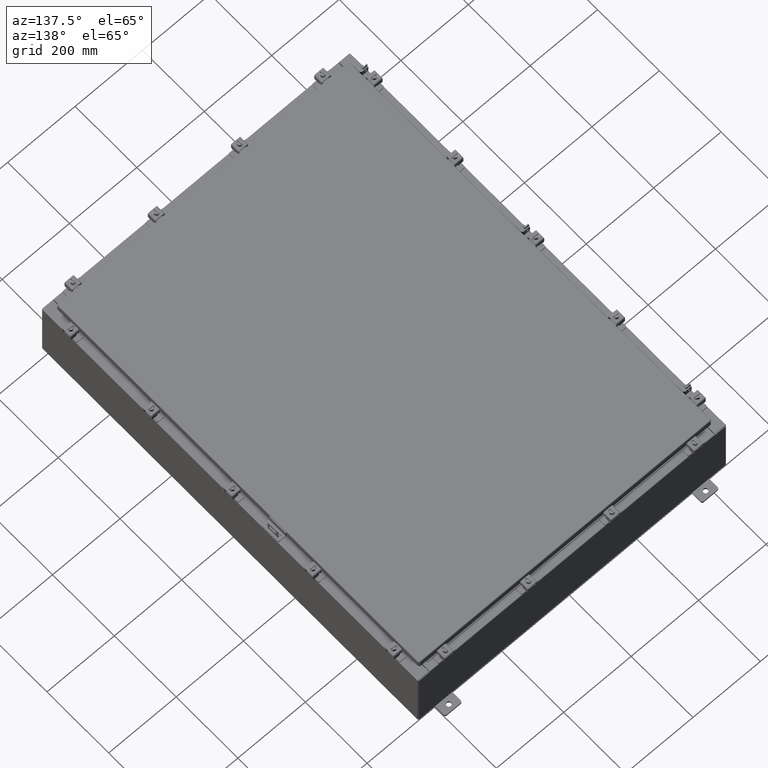
[diagram: clean part render]
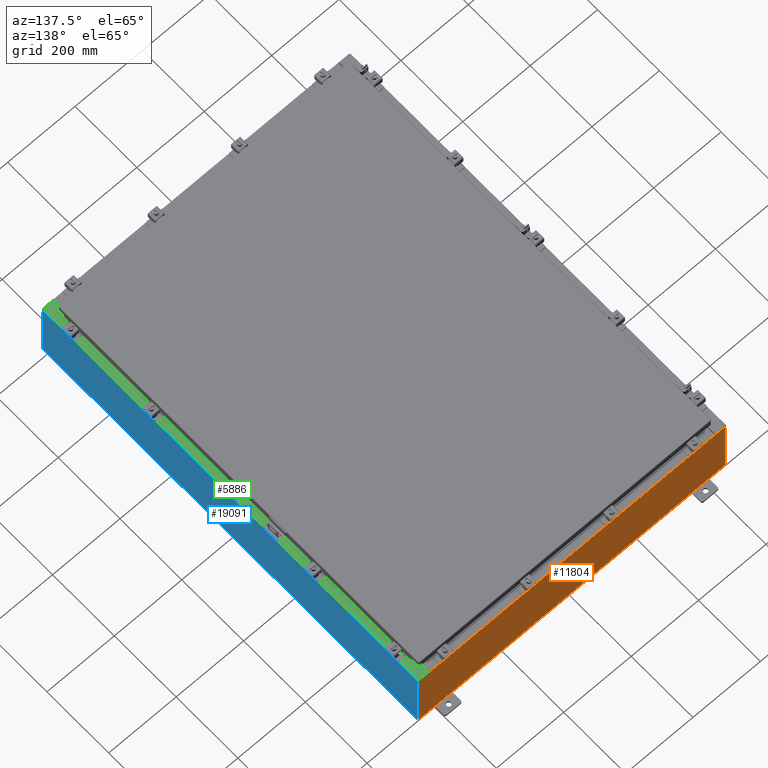
[diagram: same view with three faces highlighted in distinct colors, each labeled with its STEP entity id]
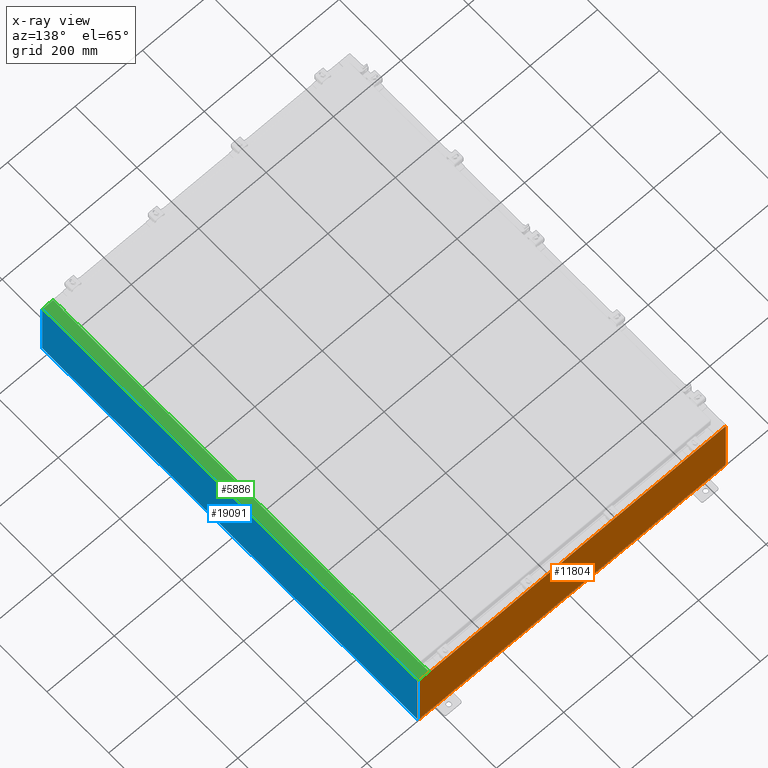
[diagram: x-ray of the same camera — body ghosted, the three highlighted faces saturated]
A machine part, auxiliary view with three faces highlighted in distinct colors.
The next image is the same camera in x-ray (body ghosted, the three faces saturated) — at least one of them is partly hidden behind the body in this view.
Their STEP definitions:

[orange] entity #11804 — the highlighted planar face has unit normal (0, -1, 0).
#4 = VERTEX_POINT ( 'NONE', #8523 ) ;
#55 = DIRECTION ( 'NONE',  ( -0.0000000000000000000, 1.000000000000000000, -0.0000000000000000000 ) ) ;
#315 = EDGE_CURVE ( 'NONE', #4, #26174, #423, .T. ) ;
#423 = LINE ( 'NONE', #16085, #4690 ) ;
#1369 = VECTOR ( 'NONE', #5095, 39.37007874015748100 ) ;
#1434 = DIRECTION ( 'NONE',  ( 1.000000000000000000, 0.0000000000000000000, 0.0000000000000000000 ) ) ;
#1683 = VECTOR ( 'NONE', #26935, 39.37007874015748100 ) ;
#2346 = DIRECTION ( 'NONE',  ( 0.0000000000000000000, -1.000000000000000000, 0.0000000000000000000 ) ) ;
#2915 = CARTESIAN_POINT ( 'NONE',  ( -16.67454999999999600, 0.0000000000000000000, 3.925300000000000500 ) ) ;
#2988 = CARTESIAN_POINT ( 'NONE',  ( -16.67454999999999600, -0.0000000000000000000, 0.0000000000000000000 ) ) ;
#4337 = LINE ( 'NONE', #17702, #14171 ) ;
#4454 = CARTESIAN_POINT ( 'NONE',  ( -17.92529999999999600, 0.0000000000000000000, 3.925300000000000500 ) ) ;
#4690 = VECTOR ( 'NONE', #22344, 39.37007874015748100 ) ;
#5095 = DIRECTION ( 'NONE',  ( 0.0000000000000000000, 0.0000000000000000000, 1.000000000000000000 ) ) ;
#5131 = EDGE_CURVE ( 'NONE', #20375, #4, #25105, .T. ) ;
#5227 = CARTESIAN_POINT ( 'NONE',  ( 17.92530000000000400, 0.0000000000000000000, 3.925300000000000500 ) ) ;
#5436 = VERTEX_POINT ( 'NONE', #2915 ) ;
#6010 = EDGE_CURVE ( 'NONE', #14990, #25092, #17833, .T. ) ;
#6090 = VERTEX_POINT ( 'NONE', #9784 ) ;
#6280 = VECTOR ( 'NONE', #13501, 39.37007874015748100 ) ;
#6282 = VERTEX_POINT ( 'NONE', #21019 ) ;
#6477 = CARTESIAN_POINT ( 'NONE',  ( 0.0000000000000000000, 0.0000000000000000000, 0.0000000000000000000 ) ) ;
#6932 = LINE ( 'NONE', #26167, #6280 ) ;
#7173 = DIRECTION ( 'NONE',  ( -0.0000000000000000000, -0.0000000000000000000, 1.000000000000000000 ) ) ;
#7474 = CARTESIAN_POINT ( 'NONE',  ( 16.63720000000000700, 0.0000000000000000000, 3.912300000000000100 ) ) ;
#7970 = DIRECTION ( 'NONE',  ( -8.681145560800009800E-014, 0.0000000000000000000, -1.000000000000000000 ) ) ;
#8123 = CARTESIAN_POINT ( 'NONE',  ( -16.63719999999999600, -0.0000000000000000000, 0.0000000000000000000 ) ) ;
#8308 = CARTESIAN_POINT ( 'NONE',  ( -16.63719999999999600, 3.756290991288361700E-016, 3.912300000000000100 ) ) ;
#8523 = CARTESIAN_POINT ( 'NONE',  ( 16.63720000000000700, 0.0000000000000000000, 3.874950000000000100 ) ) ;
#8681 = DIRECTION ( 'NONE',  ( -1.000000000000000000, -0.0000000000000000000, -0.0000000000000000000 ) ) ;
#9333 = LINE ( 'NONE', #20891, #14269 ) ;
#9784 = CARTESIAN_POINT ( 'NONE',  ( -16.67454999999999600, 0.0000000000000000000, 3.874950000000000100 ) ) ;
#9839 = AXIS2_PLACEMENT_3D ( 'NONE', #6477, #2346, #17063 ) ;
#9908 = ORIENTED_EDGE ( 'NONE', *, *, #26637, .F. ) ;
#10637 = ORIENTED_EDGE ( 'NONE', *, *, #26653, .T. ) ;
#10647 = VECTOR ( 'NONE', #1434, 39.37007874015748100 ) ;
#10686 = PLANE ( 'NONE',  #9839 ) ;
#11107 = EDGE_CURVE ( 'NONE', #6282, #14990, #24042, .T. ) ;
#11294 = EDGE_CURVE ( 'NONE', #19637, #6090, #26357, .T. ) ;
#11804 = ADVANCED_FACE ( 'NONE', ( #16463 ), #10686, .F. ) ;
#11867 = VECTOR ( 'NONE', #8681, 39.37007874015748100 ) ;
#12198 = VECTOR ( 'NONE', #13737, 39.37007874015748100 ) ;
#12514 = CARTESIAN_POINT ( 'NONE',  ( 16.65587500000000500, 0.0000000000000000000, 3.874950000000000100 ) ) ;
#12560 = ORIENTED_EDGE ( 'NONE', *, *, #16410, .T. ) ;
#12592 = CARTESIAN_POINT ( 'NONE',  ( 17.92530000000000400, 0.0000000000000000000, 3.925300000000000500 ) ) ;
#12645 = CARTESIAN_POINT ( 'NONE',  ( -16.65587499999999800, 0.0000000000000000000, 3.874950000000000100 ) ) ;
#12748 = CARTESIAN_POINT ( 'NONE',  ( 17.92530000000000400, 0.0000000000000000000, -3.925299999999999100 ) ) ;
#13169 = CARTESIAN_POINT ( 'NONE',  ( -16.63719999999999600, -0.0000000000000000000, 3.874950000000000100 ) ) ;
#13501 = DIRECTION ( 'NONE',  ( 1.000000000000000000, 0.0000000000000000000, 0.0000000000000000000 ) ) ;
#13519 = VECTOR ( 'NONE', #14558, 39.37007874015748100 ) ;
#13737 = DIRECTION ( 'NONE',  ( 0.0000000000000000000, 0.0000000000000000000, -1.000000000000000000 ) ) ;
#13814 = ORIENTED_EDGE ( 'NONE', *, *, #11294, .F. ) ;
#14171 = VECTOR ( 'NONE', #7173, 39.37007874015748100 ) ;
#14269 = VECTOR ( 'NONE', #7970, 39.37007874015748100 ) ;
#14310 = CARTESIAN_POINT ( 'NONE',  ( -17.92529999999999600, 0.0000000000000000000, 3.925300000000000500 ) ) ;
#14558 = DIRECTION ( 'NONE',  ( 0.0000000000000000000, 0.0000000000000000000, -1.000000000000000000 ) ) ;
#14676 = DIRECTION ( 'NONE',  ( 0.0000000000000000000, 0.0000000000000000000, -1.000000000000000000 ) ) ;
#14757 = DIRECTION ( 'NONE',  ( 0.0000000000000000000, 0.0000000000000000000, -1.000000000000000000 ) ) ;
#14957 = CARTESIAN_POINT ( 'NONE',  ( -17.92529999999999600, 0.0000000000000000000, -3.925299999999999100 ) ) ;
#14990 = VERTEX_POINT ( 'NONE', #12592 ) ;
#15129 = AXIS2_PLACEMENT_3D ( 'NONE', #12645, #55, #14757 ) ;
#15660 = ORIENTED_EDGE ( 'NONE', *, *, #22933, .F. ) ;
#16085 = CARTESIAN_POINT ( 'NONE',  ( 16.63720000000000700, 0.0000000000000000000, 0.0000000000000000000 ) ) ;
#16410 = EDGE_CURVE ( 'NONE', #25092, #21813, #22419, .T. ) ;
#16463 = FACE_OUTER_BOUND ( 'NONE', #25576, .T. ) ;
#17063 = DIRECTION ( 'NONE',  ( 0.0000000000000000000, -0.0000000000000000000, -1.000000000000000000 ) ) ;
#17702 = CARTESIAN_POINT ( 'NONE',  ( -17.92529999999999600, 0.0000000000000000000, 3.925300000000000500 ) ) ;
#17833 = LINE ( 'NONE', #5227, #12198 ) ;
#18047 = ORIENTED_EDGE ( 'NONE', *, *, #6010, .T. ) ;
#18154 = LINE ( 'NONE', #2988, #1369 ) ;
#19125 = LINE ( 'NONE', #8123, #13519 ) ;
#19637 = VERTEX_POINT ( 'NONE', #13169 ) ;
#19913 = CARTESIAN_POINT ( 'NONE',  ( 16.67455000000000700, 0.0000000000000000000, 3.874950000000000100 ) ) ;
#20375 = VERTEX_POINT ( 'NONE', #19913 ) ;
#20891 = CARTESIAN_POINT ( 'NONE',  ( 16.67454999999967000, -0.0000000000000000000, -1.447541957108349400E-012 ) ) ;
#20976 = ORIENTED_EDGE ( 'NONE', *, *, #21997, .T. ) ;
#21019 = CARTESIAN_POINT ( 'NONE',  ( 16.67455000000001100, 0.0000000000000000000, 3.925300000000000500 ) ) ;
#21102 = DIRECTION ( 'NONE',  ( -0.0000000000000000000, 1.000000000000000000, -0.0000000000000000000 ) ) ;
#21461 = VERTEX_POINT ( 'NONE', #8308 ) ;
#21813 = VERTEX_POINT ( 'NONE', #26066 ) ;
#21875 = LINE ( 'NONE', #26616, #10647 ) ;
#21997 = EDGE_CURVE ( 'NONE', #21461, #26174, #21875, .T. ) ;
#22113 = ORIENTED_EDGE ( 'NONE', *, *, #315, .F. ) ;
#22251 = AXIS2_PLACEMENT_3D ( 'NONE', #12514, #21102, #14676 ) ;
#22344 = DIRECTION ( 'NONE',  ( 0.0000000000000000000, 0.0000000000000000000, 1.000000000000000000 ) ) ;
#22375 = VERTEX_POINT ( 'NONE', #4454 ) ;
#22419 = LINE ( 'NONE', #14957, #11867 ) ;
#22933 = EDGE_CURVE ( 'NONE', #6282, #20375, #9333, .T. ) ;
#24042 = LINE ( 'NONE', #14310, #1683 ) ;
#24340 = ORIENTED_EDGE ( 'NONE', *, *, #11107, .T. ) ;
#24622 = EDGE_CURVE ( 'NONE', #21813, #22375, #4337, .T. ) ;
#25007 = ORIENTED_EDGE ( 'NONE', *, *, #26279, .F. ) ;
#25092 = VERTEX_POINT ( 'NONE', #12748 ) ;
#25105 = CIRCLE ( 'NONE', #22251, 0.01867499999999949400 ) ;
#25517 = ORIENTED_EDGE ( 'NONE', *, *, #24622, .T. ) ;
#25576 = EDGE_LOOP ( 'NONE', ( #9908, #13814, #25007, #20976, #22113, #26790, #15660, #24340, #18047, #12560, #25517, #10637 ) ) ;
#26066 = CARTESIAN_POINT ( 'NONE',  ( -17.92529999999999600, 0.0000000000000000000, -3.925299999999999100 ) ) ;
#26167 = CARTESIAN_POINT ( 'NONE',  ( -17.92529999999999600, 0.0000000000000000000, 3.925300000000000500 ) ) ;
#26174 = VERTEX_POINT ( 'NONE', #7474 ) ;
#26279 = EDGE_CURVE ( 'NONE', #21461, #19637, #19125, .T. ) ;
#26357 = CIRCLE ( 'NONE', #15129, 0.01867499999999949400 ) ;
#26616 = CARTESIAN_POINT ( 'NONE',  ( -16.63719999999999600, 3.756290991288361700E-016, 3.912300000000000100 ) ) ;
#26637 = EDGE_CURVE ( 'NONE', #6090, #5436, #18154, .T. ) ;
#26653 = EDGE_CURVE ( 'NONE', #22375, #5436, #6932, .T. ) ;
#26790 = ORIENTED_EDGE ( 'NONE', *, *, #5131, .F. ) ;
#26935 = DIRECTION ( 'NONE',  ( 1.000000000000000000, 0.0000000000000000000, 0.0000000000000000000 ) ) ;

[blue] entity #19091 — the highlighted planar face has unit normal (-1, 0, 0).
#832 = DIRECTION ( 'NONE',  ( -0.0000000000000000000, -1.000000000000000000, -0.0000000000000000000 ) ) ;
#1592 = FACE_OUTER_BOUND ( 'NONE', #14230, .T. ) ;
#3050 = LINE ( 'NONE', #5047, #14178 ) ;
#3373 = ORIENTED_EDGE ( 'NONE', *, *, #17386, .T. ) ;
#3995 = DIRECTION ( 'NONE',  ( 3.584876173029202900E-015, 0.0000000000000000000, 1.000000000000000000 ) ) ;
#4175 = LINE ( 'NONE', #16444, #20283 ) ;
#5047 = CARTESIAN_POINT ( 'NONE',  ( 17.99999999999999600, -23.92529999999998900, -6.478858477053721600E-014 ) ) ;
#5495 = CARTESIAN_POINT ( 'NONE',  ( 17.99999999999999600, 23.92529999999998600, 0.01300000000000203200 ) ) ;
#5541 = DIRECTION ( 'NONE',  ( 3.584876173029202900E-015, 0.0000000000000000000, 1.000000000000000000 ) ) ;
#5910 = EDGE_CURVE ( 'NONE', #6306, #26729, #3050, .T. ) ;
#6306 = VERTEX_POINT ( 'NONE', #16912 ) ;
#6762 = LINE ( 'NONE', #13383, #22894 ) ;
#7882 = LINE ( 'NONE', #16614, #8518 ) ;
#8518 = VECTOR ( 'NONE', #3995, 39.37007874015748100 ) ;
#9625 = CARTESIAN_POINT ( 'NONE',  ( 17.99999999999999600, 0.0000000000000000000, -6.478858477053721600E-014 ) ) ;
#13383 = CARTESIAN_POINT ( 'NONE',  ( 18.00000000000002500, 23.92529999999998900, 7.837599999999992100 ) ) ;
#13448 = EDGE_CURVE ( 'NONE', #21964, #26729, #4175, .T. ) ;
#13909 = VERTEX_POINT ( 'NONE', #17711 ) ;
#14178 = VECTOR ( 'NONE', #19741, 39.37007874015748100 ) ;
#14230 = EDGE_LOOP ( 'NONE', ( #21181, #19922, #26007, #3373 ) ) ;
#16444 = CARTESIAN_POINT ( 'NONE',  ( 17.99999999999999600, -23.92529999999998900, 0.01299999999999984700 ) ) ;
#16614 = CARTESIAN_POINT ( 'NONE',  ( 17.99999999999999600, 23.92529999999998900, -6.478858477053721600E-014 ) ) ;
#16912 = CARTESIAN_POINT ( 'NONE',  ( 18.00000000000002500, -23.92529999999998900, 7.837599999999998300 ) ) ;
#17386 = EDGE_CURVE ( 'NONE', #21964, #13909, #7882, .T. ) ;
#17711 = CARTESIAN_POINT ( 'NONE',  ( 18.00000000000002500, 23.92529999999998600, 7.837599999999992100 ) ) ;
#18114 = DIRECTION ( 'NONE',  ( -1.000000000000000000, 0.0000000000000000000, 3.584876173029202900E-015 ) ) ;
#19091 = ADVANCED_FACE ( 'NONE', ( #1592 ), #24349, .F. ) ;
#19621 = AXIS2_PLACEMENT_3D ( 'NONE', #9625, #18114, #5541 ) ;
#19741 = DIRECTION ( 'NONE',  ( -3.584876173029202900E-015, 0.0000000000000000000, -1.000000000000000000 ) ) ;
#19922 = ORIENTED_EDGE ( 'NONE', *, *, #5910, .T. ) ;
#20283 = VECTOR ( 'NONE', #22765, 39.37007874015748100 ) ;
#21054 = EDGE_CURVE ( 'NONE', #13909, #6306, #6762, .T. ) ;
#21181 = ORIENTED_EDGE ( 'NONE', *, *, #21054, .T. ) ;
#21964 = VERTEX_POINT ( 'NONE', #5495 ) ;
#22765 = DIRECTION ( 'NONE',  ( -1.637318952042341600E-031, -1.000000000000000000, -4.567295697298285000E-017 ) ) ;
#22894 = VECTOR ( 'NONE', #832, 39.37007874015748100 ) ;
#24221 = CARTESIAN_POINT ( 'NONE',  ( 17.99999999999999600, -23.92529999999998900, 0.01299999999999896900 ) ) ;
#24349 = PLANE ( 'NONE',  #19621 ) ;
#26007 = ORIENTED_EDGE ( 'NONE', *, *, #13448, .F. ) ;
#26729 = VERTEX_POINT ( 'NONE', #24221 ) ;

[green] entity #5886 — the highlighted planar face has unit normal (-0, 0, -1).
#92 = EDGE_CURVE ( 'NONE', #24028, #435, #14225, .T. ) ;
#435 = VERTEX_POINT ( 'NONE', #16816 ) ;
#995 = VERTEX_POINT ( 'NONE', #9143 ) ;
#1229 = VECTOR ( 'NONE', #22658, 39.37007874015748100 ) ;
#1517 = CARTESIAN_POINT ( 'NONE',  ( 16.69970000000002500, -2.698656257853499100E-030, 7.925300000000007100 ) ) ;
#2353 = LINE ( 'NONE', #24667, #24052 ) ;
#2400 = EDGE_CURVE ( 'NONE', #18478, #5129, #16895, .T. ) ;
#2544 = CARTESIAN_POINT ( 'NONE',  ( 16.71270000000002700, -22.59374999999998900, 7.925300000000010700 ) ) ;
#2576 = DIRECTION ( 'NONE',  ( 1.000000000000000000, 2.036089684584814400E-032, -6.241167087353087800E-015 ) ) ;
#2762 = CARTESIAN_POINT ( 'NONE',  ( 16.71270000000002700, -22.59374999999998900, 7.925300000000010700 ) ) ;
#2933 = CARTESIAN_POINT ( 'NONE',  ( 17.91230000000002300, 23.92529999999998600, 7.925300000000000000 ) ) ;
#3310 = CARTESIAN_POINT ( 'NONE',  ( 16.69970000000002500, 22.63109999999996800, 7.925300000000007100 ) ) ;
#3353 = DIRECTION ( 'NONE',  ( 6.241167087353086200E-015, 0.0000000000000000000, 1.000000000000000000 ) ) ;
#3967 = EDGE_CURVE ( 'NONE', #995, #6949, #17463, .T. ) ;
#4112 = DIRECTION ( 'NONE',  ( -1.000000000000000000, 2.189528850507527200E-047, 6.241167087353087800E-015 ) ) ;
#4319 = EDGE_CURVE ( 'NONE', #26519, #24028, #20052, .T. ) ;
#5129 = VERTEX_POINT ( 'NONE', #25046 ) ;
#5886 = ADVANCED_FACE ( 'NONE', ( #15520 ), #9069, .F. ) ;
#6068 = VECTOR ( 'NONE', #8446, 39.37007874015748100 ) ;
#6778 = EDGE_CURVE ( 'NONE', #8187, #21491, #13130, .T. ) ;
#6949 = VERTEX_POINT ( 'NONE', #13052 ) ;
#7002 = VERTEX_POINT ( 'NONE', #11117 ) ;
#7269 = VECTOR ( 'NONE', #16203, 39.37007874015748100 ) ;
#7720 = AXIS2_PLACEMENT_3D ( 'NONE', #15947, #3353, #18070 ) ;
#7881 = ORIENTED_EDGE ( 'NONE', *, *, #6778, .T. ) ;
#8187 = VERTEX_POINT ( 'NONE', #2933 ) ;
#8346 = ORIENTED_EDGE ( 'NONE', *, *, #92, .F. ) ;
#8446 = DIRECTION ( 'NONE',  ( -1.000000000000000000, 0.0000000000000000000, -4.340572780400098900E-014 ) ) ;
#9069 = PLANE ( 'NONE',  #10991 ) ;
#9095 = DIRECTION ( 'NONE',  ( 1.000000000000000000, 0.0000000000000000000, 0.0000000000000000000 ) ) ;
#9143 = CARTESIAN_POINT ( 'NONE',  ( 16.69970000000002500, -23.92529999999998900, 7.925300000000007100 ) ) ;
#9857 = CARTESIAN_POINT ( 'NONE',  ( 16.75005000000002300, -22.61242499999998800, 7.925300000000010700 ) ) ;
#9955 = DIRECTION ( 'NONE',  ( 1.000000000000000000, 0.0000000000000000000, 4.340572780400098900E-014 ) ) ;
#10326 = CARTESIAN_POINT ( 'NONE',  ( 16.71270000000002700, 22.59374999999997200, 7.925300000000010700 ) ) ;
#10449 = EDGE_CURVE ( 'NONE', #21491, #12826, #23400, .T. ) ;
#10481 = ORIENTED_EDGE ( 'NONE', *, *, #16813, .F. ) ;
#10667 = DIRECTION ( 'NONE',  ( -1.615990860825944700E-031, -1.000000000000000000, 1.008566897405026800E-045 ) ) ;
#10991 = AXIS2_PLACEMENT_3D ( 'NONE', #23691, #23810, #11167 ) ;
#10995 = CARTESIAN_POINT ( 'NONE',  ( 4.972393517341168900E-014, -23.92529999999998900, 7.925300000000111000 ) ) ;
#11117 = CARTESIAN_POINT ( 'NONE',  ( 16.75005000000002300, 22.63109999999996800, 7.925300000000006200 ) ) ;
#11167 = DIRECTION ( 'NONE',  ( -1.000000000000000000, 0.0000000000000000000, 6.241167087353086200E-015 ) ) ;
#12009 = DIRECTION ( 'NONE',  ( 1.000000000000000000, 0.0000000000000000000, 0.0000000000000000000 ) ) ;
#12058 = CARTESIAN_POINT ( 'NONE',  ( 16.71270000000002700, 22.59374999999997200, 7.925300000000010700 ) ) ;
#12147 = CARTESIAN_POINT ( 'NONE',  ( 17.91230000000002300, -23.92529999999998900, 7.925300000000000000 ) ) ;
#12420 = CARTESIAN_POINT ( 'NONE',  ( 4.972393517341168900E-014, 23.92529999999998600, 7.925300000000111000 ) ) ;
#12588 = ORIENTED_EDGE ( 'NONE', *, *, #14711, .F. ) ;
#12826 = VERTEX_POINT ( 'NONE', #3310 ) ;
#12985 = ORIENTED_EDGE ( 'NONE', *, *, #14336, .T. ) ;
#13052 = CARTESIAN_POINT ( 'NONE',  ( 17.91230000000002300, -23.92529999999998900, 7.925300000000000000 ) ) ;
#13130 = LINE ( 'NONE', #12420, #18123 ) ;
#13289 = DIRECTION ( 'NONE',  ( -0.0000000000000000000, 1.000000000000000000, -0.0000000000000000000 ) ) ;
#13573 = ORIENTED_EDGE ( 'NONE', *, *, #3967, .T. ) ;
#13982 = CARTESIAN_POINT ( 'NONE',  ( 16.75005000000002300, -22.63109999999998600, 7.925300000000006200 ) ) ;
#14225 = LINE ( 'NONE', #10326, #24768 ) ;
#14336 = EDGE_CURVE ( 'NONE', #26527, #995, #24181, .T. ) ;
#14435 = VECTOR ( 'NONE', #13289, 39.37007874015748100 ) ;
#14478 = VECTOR ( 'NONE', #23955, 39.37007874015748100 ) ;
#14487 = ORIENTED_EDGE ( 'NONE', *, *, #4319, .F. ) ;
#14711 = EDGE_CURVE ( 'NONE', #435, #7002, #16273, .T. ) ;
#15478 = CARTESIAN_POINT ( 'NONE',  ( 16.75005000000002300, -22.59374999999998900, 7.925300000000010700 ) ) ;
#15520 = FACE_OUTER_BOUND ( 'NONE', #22747, .T. ) ;
#15947 = CARTESIAN_POINT ( 'NONE',  ( 16.75005000000002300, 22.61242499999997000, 7.925300000000010700 ) ) ;
#16203 = DIRECTION ( 'NONE',  ( -1.615990860825944700E-031, -1.000000000000000000, 1.008566897405026800E-045 ) ) ;
#16273 = CIRCLE ( 'NONE', #7720, 0.01867499999999949400 ) ;
#16813 = EDGE_CURVE ( 'NONE', #26527, #18478, #2353, .T. ) ;
#16816 = CARTESIAN_POINT ( 'NONE',  ( 16.75005000000002300, 22.59374999999997200, 7.925300000000006200 ) ) ;
#16895 = CIRCLE ( 'NONE', #21300, 0.01867499999999949400 ) ;
#17038 = EDGE_CURVE ( 'NONE', #5129, #26519, #20097, .T. ) ;
#17463 = LINE ( 'NONE', #10995, #23029 ) ;
#17951 = VECTOR ( 'NONE', #10667, 39.37007874015748100 ) ;
#17969 = ORIENTED_EDGE ( 'NONE', *, *, #19989, .F. ) ;
#18070 = DIRECTION ( 'NONE',  ( 1.000000000000000000, 0.0000000000000000000, 0.0000000000000000000 ) ) ;
#18123 = VECTOR ( 'NONE', #4112, 39.37007874015748100 ) ;
#18171 = ORIENTED_EDGE ( 'NONE', *, *, #10449, .T. ) ;
#18195 = ORIENTED_EDGE ( 'NONE', *, *, #2400, .F. ) ;
#18478 = VERTEX_POINT ( 'NONE', #13982 ) ;
#18918 = CARTESIAN_POINT ( 'NONE',  ( 16.69970000000002500, 23.92529999999998200, 7.925300000000007100 ) ) ;
#19989 = EDGE_CURVE ( 'NONE', #8187, #6949, #22937, .T. ) ;
#20052 = LINE ( 'NONE', #2762, #14435 ) ;
#20097 = LINE ( 'NONE', #15478, #14478 ) ;
#21066 = CARTESIAN_POINT ( 'NONE',  ( 16.75005000000002300, 22.63109999999996800, 7.925300000000010700 ) ) ;
#21300 = AXIS2_PLACEMENT_3D ( 'NONE', #9857, #24607, #12009 ) ;
#21491 = VERTEX_POINT ( 'NONE', #18918 ) ;
#22152 = ORIENTED_EDGE ( 'NONE', *, *, #17038, .F. ) ;
#22301 = EDGE_CURVE ( 'NONE', #7002, #12826, #27132, .T. ) ;
#22658 = DIRECTION ( 'NONE',  ( -0.0000000000000000000, -1.000000000000000000, -0.0000000000000000000 ) ) ;
#22747 = EDGE_LOOP ( 'NONE', ( #10481, #12985, #13573, #17969, #7881, #18171, #23174, #12588, #8346, #14487, #22152, #18195 ) ) ;
#22937 = LINE ( 'NONE', #12147, #1229 ) ;
#23029 = VECTOR ( 'NONE', #2576, 39.37007874015748100 ) ;
#23174 = ORIENTED_EDGE ( 'NONE', *, *, #22301, .F. ) ;
#23275 = CARTESIAN_POINT ( 'NONE',  ( 16.69970000000002500, -2.698656257853499100E-030, 7.925300000000007100 ) ) ;
#23400 = LINE ( 'NONE', #1517, #7269 ) ;
#23691 = CARTESIAN_POINT ( 'NONE',  ( 4.972393517341168900E-014, 0.0000000000000000000, 7.925300000000111000 ) ) ;
#23810 = DIRECTION ( 'NONE',  ( -6.241167087353086200E-015, 0.0000000000000000000, -1.000000000000000000 ) ) ;
#23955 = DIRECTION ( 'NONE',  ( -1.000000000000000000, 0.0000000000000000000, 0.0000000000000000000 ) ) ;
#24028 = VERTEX_POINT ( 'NONE', #12058 ) ;
#24052 = VECTOR ( 'NONE', #9955, 39.37007874015748100 ) ;
#24181 = LINE ( 'NONE', #23275, #17951 ) ;
#24607 = DIRECTION ( 'NONE',  ( 6.241167087353086200E-015, 0.0000000000000000000, 1.000000000000000000 ) ) ;
#24667 = CARTESIAN_POINT ( 'NONE',  ( 16.69970000000002500, -22.63109999999998600, 7.925300000000008900 ) ) ;
#24768 = VECTOR ( 'NONE', #9095, 39.37007874015748100 ) ;
#25046 = CARTESIAN_POINT ( 'NONE',  ( 16.75005000000002300, -22.59374999999998900, 7.925300000000006200 ) ) ;
#25665 = CARTESIAN_POINT ( 'NONE',  ( 16.69970000000002500, -22.63109999999998600, 7.925300000000007100 ) ) ;
#26519 = VERTEX_POINT ( 'NONE', #2544 ) ;
#26527 = VERTEX_POINT ( 'NONE', #25665 ) ;
#27132 = LINE ( 'NONE', #21066, #6068 ) ;